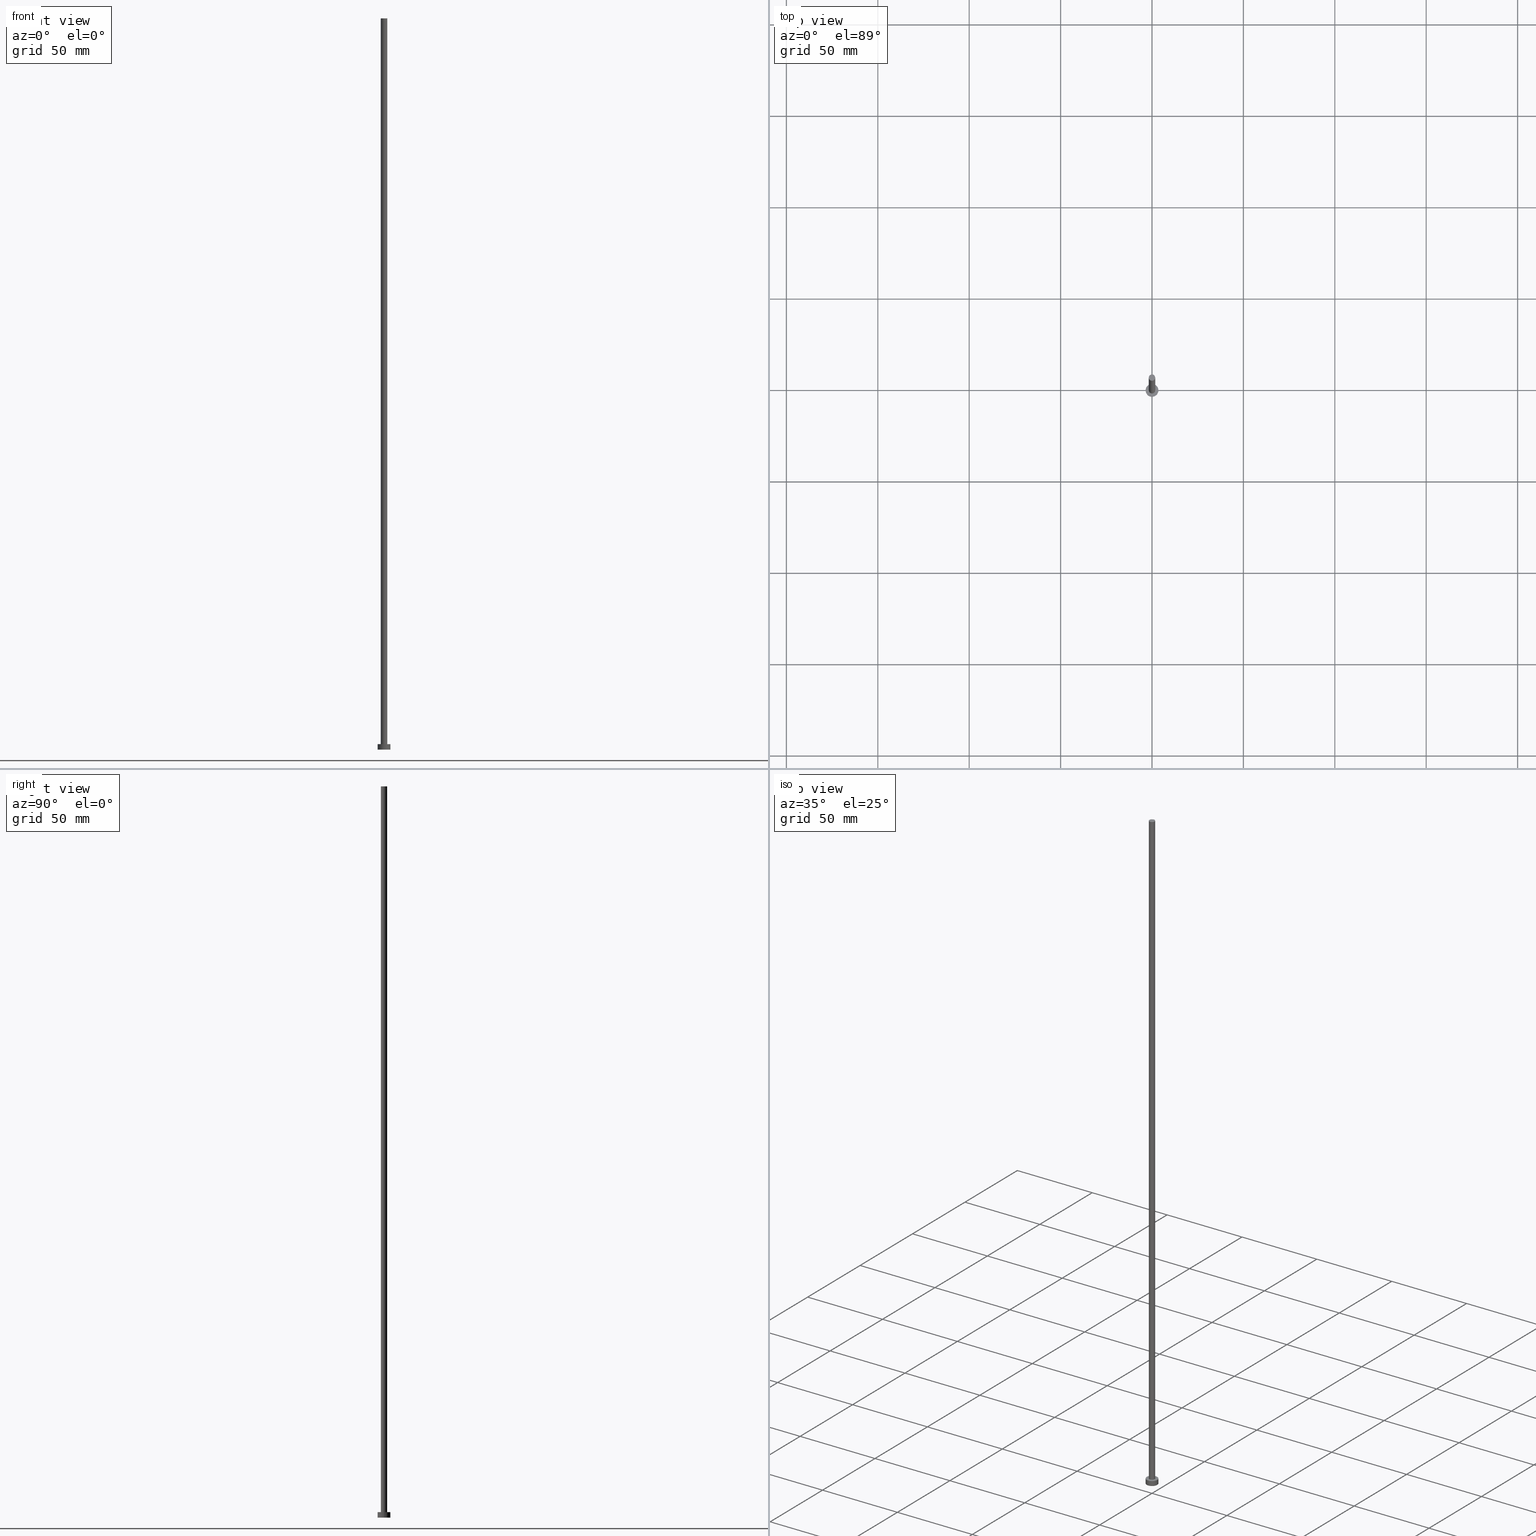
[diagram: canonical four-view strip — front | top / right | iso, engineering-drawing reading convention]
A machine part, canonical four-view strip (front | top / right | iso — engineering-drawing reading convention). The complete STEP part file that produces these views, byte-faithful:
ISO-10303-21;
HEADER;
FILE_DESCRIPTION (( 'STEP AP203' ),
    '1' );
FILE_NAME ('8919.STEP',
    '2023-02-13T13:58:28',
    ( '' ),
    ( '' ),
    'SwSTEP 2.0',
    'SolidWorks 2019',
    '' );
FILE_SCHEMA (( 'CONFIG_CONTROL_DESIGN' ));
ENDSEC;

DATA;
#1 = CARTESIAN_POINT ( 'NONE',  ( 0.000000000000000000, 0.000000000000000000, 3.000000000000000000 ) ) ;
#2 = CIRCLE ( 'NONE', #28, 1.750000000000000000 ) ;
#3 = PLANE ( 'NONE',  #158 ) ;
#4 = DIRECTION ( 'NONE',  ( 0.000000000000000000, 0.000000000000000000, 1.000000000000000000 ) ) ;
#5 = CC_DESIGN_APPROVAL ( #83, ( #186 ) ) ;
#6 = EDGE_CURVE ( 'NONE', #238, #90, #17, .T. ) ;
#7 = ORIENTED_EDGE ( 'NONE', *, *, #167, .F. ) ;
#8 = APPROVAL ( #233, 'NEUR�EN�' ) ;
#9 = DIRECTION ( 'NONE',  ( -1.000000000000000000, 0.000000000000000000, 0.000000000000000000 ) ) ;
#10 =( LENGTH_UNIT ( ) NAMED_UNIT ( * ) SI_UNIT ( .MILLI., .METRE. ) );
#11 = CARTESIAN_POINT ( 'NONE',  ( 1.750000000000000000, 2.143131898507868297E-16, 3.000000000000000000 ) ) ;
#12 = CIRCLE ( 'NONE', #198, 3.500000000000000444 ) ;
#13 = CYLINDRICAL_SURFACE ( 'NONE', #231, 1.750000000000000000 ) ;
#14 = MANIFOLD_SOLID_BREP ( 'P�idat vysunut�m3', #227 ) ;
#15 = PERSON_AND_ORGANIZATION ( #97, #230 ) ;
#16 = PERSON_AND_ORGANIZATION_ROLE ( 'creator' ) ;
#17 = CIRCLE ( 'NONE', #52, 1.750000000000000000 ) ;
#18 = PERSON_AND_ORGANIZATION ( #97, #230 ) ;
#19 = ORIENTED_EDGE ( 'NONE', *, *, #176, .T. ) ;
#20 = PERSON_AND_ORGANIZATION_ROLE ( 'design_supplier' ) ;
#21 = DATE_TIME_ROLE ( 'classification_date' ) ;
#22 = VERTEX_POINT ( 'NONE', #140 ) ;
#23 = CC_DESIGN_PERSON_AND_ORGANIZATION_ASSIGNMENT ( #43, #67, ( #82 ) ) ;
#24 = VERTEX_POINT ( 'NONE', #95 ) ;
#25 = ORIENTED_EDGE ( 'NONE', *, *, #148, .T. ) ;
#26 = FACE_OUTER_BOUND ( 'NONE', #175, .T. ) ;
#27 = DIRECTION ( 'NONE',  ( -0.000000000000000000, -0.000000000000000000, -1.000000000000000000 ) ) ;
#28 = AXIS2_PLACEMENT_3D ( 'NONE', #81, #243, #184 ) ;
#29 = APPROVAL ( #250, 'NEUR�EN�' ) ;
#30 = CARTESIAN_POINT ( 'NONE',  ( 0.000000000000000000, 0.000000000000000000, 400.0000000000000000 ) ) ;
#31 = CARTESIAN_POINT ( 'NONE',  ( -1.750000000000000000, 0.000000000000000000, 3.000000000000000000 ) ) ;
#32 = CARTESIAN_POINT ( 'NONE',  ( 0.000000000000000000, 0.000000000000000000, 3.000000000000000000 ) ) ;
#33 = ADVANCED_FACE ( 'NONE', ( #26 ), #44, .T. ) ;
#34 = VECTOR ( 'NONE', #107, 1000.000000000000000 ) ;
#35 = DIRECTION ( 'NONE',  ( -0.000000000000000000, -0.000000000000000000, -1.000000000000000000 ) ) ;
#36 = LINE ( 'NONE', #145, #34 ) ;
#37 = CARTESIAN_POINT ( 'NONE',  ( 0.000000000000000000, 0.000000000000000000, 3.000000000000000000 ) ) ;
#38 = CARTESIAN_POINT ( 'NONE',  ( 0.000000000000000000, 0.000000000000000000, 0.000000000000000000 ) ) ;
#39 = APPROVAL_ROLE ( '' ) ;
#40 = ORIENTED_EDGE ( 'NONE', *, *, #151, .F. ) ;
#41 = SECURITY_CLASSIFICATION_LEVEL ( 'unclassified' ) ;
#42 = APPROVAL_ROLE ( '' ) ;
#43 = PERSON_AND_ORGANIZATION ( #97, #230 ) ;
#44 = CYLINDRICAL_SURFACE ( 'NONE', #190, 3.500000000000000444 ) ;
#45 = CARTESIAN_POINT ( 'NONE',  ( 0.000000000000000000, 0.000000000000000000, 3.000000000000000000 ) ) ;
#46 = CC_DESIGN_APPROVAL ( #29, ( #82 ) ) ;
#47 = DIRECTION ( 'NONE',  ( 0.000000000000000000, 0.000000000000000000, 1.000000000000000000 ) ) ;
#48 = DIRECTION ( 'NONE',  ( 1.000000000000000000, 0.000000000000000000, -0.000000000000000000 ) ) ;
#49 = DIRECTION ( 'NONE',  ( 0.000000000000000000, 0.000000000000000000, 1.000000000000000000 ) ) ;
#50 = CARTESIAN_POINT ( 'NONE',  ( 3.500000000000000444, 4.286263797015737088E-16, 3.000000000000000000 ) ) ;
#51 = LOCAL_TIME ( 14, 58, 28.00000000000000000, #55 ) ;
#52 = AXIS2_PLACEMENT_3D ( 'NONE', #45, #160, #196 ) ;
#53 = VERTEX_POINT ( 'NONE', #255 ) ;
#54 = CALENDAR_DATE ( 2023, 13, 2 ) ;
#55 = COORDINATED_UNIVERSAL_TIME_OFFSET ( 1, 0, .AHEAD. ) ;
#56 = LOCAL_TIME ( 14, 58, 28.00000000000000000, #192 ) ;
#57 = FACE_OUTER_BOUND ( 'NONE', #71, .T. ) ;
#58 = LINE ( 'NONE', #218, #204 ) ;
#59 = ORIENTED_EDGE ( 'NONE', *, *, #185, .T. ) ;
#60 = DIRECTION ( 'NONE',  ( 0.000000000000000000, 0.000000000000000000, 1.000000000000000000 ) ) ;
#61 = DIRECTION ( 'NONE',  ( 0.000000000000000000, 0.000000000000000000, 1.000000000000000000 ) ) ;
#62 = DIRECTION ( 'NONE',  ( -0.000000000000000000, -0.000000000000000000, -1.000000000000000000 ) ) ;
#63 = CARTESIAN_POINT ( 'NONE',  ( 0.000000000000000000, 0.000000000000000000, 0.000000000000000000 ) ) ;
#64 = CC_DESIGN_DATE_AND_TIME_ASSIGNMENT ( #132, #21, ( #186 ) ) ;
#65 = UNCERTAINTY_MEASURE_WITH_UNIT (LENGTH_MEASURE( 1.000000000000000082E-05 ), #10, 'distance_accuracy_value', 'NONE');
#66 = EDGE_LOOP ( 'NONE', ( #7, #180 ) ) ;
#67 = PERSON_AND_ORGANIZATION_ROLE ( 'creator' ) ;
#68 = APPROVAL_DATE_TIME ( #212, #29 ) ;
#69 = ORIENTED_EDGE ( 'NONE', *, *, #185, .F. ) ;
#70 = APPROVAL_STATUS ( 'not_yet_approved' ) ;
#71 = EDGE_LOOP ( 'NONE', ( #253, #172, #170, #40 ) ) ;
#72 = APPLICATION_CONTEXT ( 'configuration controlled 3d designs of mechanical parts and assemblies' ) ;
#73 = PRODUCT_RELATED_PRODUCT_CATEGORY ( 'detail', '', ( #106 ) ) ;
#74 = ORIENTED_EDGE ( 'NONE', *, *, #206, .T. ) ;
#75 = AXIS2_PLACEMENT_3D ( 'NONE', #32, #205, #126 ) ;
#76 = DIRECTION ( 'NONE',  ( 1.000000000000000000, 0.000000000000000000, 0.000000000000000000 ) ) ;
#77 = DIRECTION ( 'NONE',  ( -1.000000000000000000, 0.000000000000000000, 0.000000000000000000 ) ) ;
#78 = FACE_OUTER_BOUND ( 'NONE', #236, .T. ) ;
#79 = CARTESIAN_POINT ( 'NONE',  ( 0.000000000000000000, 0.000000000000000000, 3.000000000000000000 ) ) ;
#80 = CARTESIAN_POINT ( 'NONE',  ( -1.750000000000000000, 0.000000000000000000, 400.0000000000000000 ) ) ;
#81 = CARTESIAN_POINT ( 'NONE',  ( 0.000000000000000000, 0.000000000000000000, 400.0000000000000000 ) ) ;
#82 = PRODUCT_DEFINITION ( 'NEZN�M�', '', #88, #246 ) ;
#83 = APPROVAL ( #70, 'NEUR�EN�' ) ;
#84 = CARTESIAN_POINT ( 'NONE',  ( 0.000000000000000000, 0.000000000000000000, 400.0000000000000000 ) ) ;
#85 = FACE_OUTER_BOUND ( 'NONE', #219, .T. ) ;
#86 = APPROVAL_DATE_TIME ( #155, #83 ) ;
#87 = CC_DESIGN_PERSON_AND_ORGANIZATION_ASSIGNMENT ( #150, #209, ( #186 ) ) ;
#88 = PRODUCT_DEFINITION_FORMATION_WITH_SPECIFIED_SOURCE ( 'LIBOVOLN�', '', #106, .NOT_KNOWN. ) ;
#89 = DATE_AND_TIME ( #249, #130 ) ;
#90 = VERTEX_POINT ( 'NONE', #31 ) ;
#91 = CYLINDRICAL_SURFACE ( 'NONE', #194, 1.750000000000000000 ) ;
#92 = DIRECTION ( 'NONE',  ( 1.000000000000000000, 0.000000000000000000, -0.000000000000000000 ) ) ;
#93 = AXIS2_PLACEMENT_3D ( 'NONE', #38, #102, #188 ) ;
#94 = ORIENTED_EDGE ( 'NONE', *, *, #151, .T. ) ;
#95 = CARTESIAN_POINT ( 'NONE',  ( -3.500000000000000444, 0.000000000000000000, 3.000000000000000000 ) ) ;
#96 = DIRECTION ( 'NONE',  ( 1.000000000000000000, 0.000000000000000000, -0.000000000000000000 ) ) ;
#97 = PERSON ( 'NEUR�EN�', 'NEUR�EN�', 'NEUR�EN�', ('NEUR�EN�'), ('NEUR�EN�'), ('NEUR�EN�') ) ;
#98 = APPROVAL_PERSON_ORGANIZATION ( #232, #8, #108 ) ;
#99 = ADVANCED_FACE ( 'NONE', ( #141 ), #3, .F. ) ;
#100 = LINE ( 'NONE', #50, #110 ) ;
#101 = AXIS2_PLACEMENT_3D ( 'NONE', #215, #4, #143 ) ;
#102 = DIRECTION ( 'NONE',  ( 0.000000000000000000, 0.000000000000000000, 1.000000000000000000 ) ) ;
#103 = ADVANCED_FACE ( 'NONE', ( #57 ), #91, .T. ) ;
#104 = CARTESIAN_POINT ( 'NONE',  ( 0.000000000000000000, 0.000000000000000000, 3.000000000000000000 ) ) ;
#105 = CYLINDRICAL_SURFACE ( 'NONE', #181, 3.500000000000000444 ) ;
#106 = PRODUCT ( '8919', '8919', '', ( #165 ) ) ;
#107 = DIRECTION ( 'NONE',  ( -0.000000000000000000, -0.000000000000000000, -1.000000000000000000 ) ) ;
#108 = APPROVAL_ROLE ( '' ) ;
#109 = ADVANCED_FACE ( 'NONE', ( #217, #156 ), #120, .T. ) ;
#110 = VECTOR ( 'NONE', #129, 1000.000000000000000 ) ;
#111 = COORDINATED_UNIVERSAL_TIME_OFFSET ( 1, 0, .AHEAD. ) ;
#112 = VERTEX_POINT ( 'NONE', #200 ) ;
#113 = CALENDAR_DATE ( 2023, 13, 2 ) ;
#114 = ORIENTED_EDGE ( 'NONE', *, *, #148, .F. ) ;
#115 = DATE_AND_TIME ( #254, #137 ) ;
#116 = AXIS2_PLACEMENT_3D ( 'NONE', #37, #228, #147 ) ;
#117 = CC_DESIGN_APPROVAL ( #8, ( #88 ) ) ;
#118 = AXIS2_PLACEMENT_3D ( 'NONE', #177, #60, #96 ) ;
#119 = ORIENTED_EDGE ( 'NONE', *, *, #242, .F. ) ;
#120 = PLANE ( 'NONE',  #213 ) ;
#121 = ORIENTED_EDGE ( 'NONE', *, *, #6, .F. ) ;
#122 = CARTESIAN_POINT ( 'NONE',  ( 0.000000000000000000, 0.000000000000000000, 3.000000000000000000 ) ) ;
#123 = ORIENTED_EDGE ( 'NONE', *, *, #157, .F. ) ;
#124 = EDGE_CURVE ( 'NONE', #161, #22, #182, .T. ) ;
#125 = DIRECTION ( 'NONE',  ( 1.000000000000000000, 0.000000000000000000, 0.000000000000000000 ) ) ;
#126 = DIRECTION ( 'NONE',  ( 1.000000000000000000, 0.000000000000000000, 0.000000000000000000 ) ) ;
#127 = AXIS2_PLACEMENT_3D ( 'NONE', #63, #183, #163 ) ;
#128 = APPLICATION_PROTOCOL_DEFINITION ( 'international standard', 'config_control_design', 1994, #136 ) ;
#129 = DIRECTION ( 'NONE',  ( -0.000000000000000000, -0.000000000000000000, -1.000000000000000000 ) ) ;
#130 = LOCAL_TIME ( 14, 58, 28.00000000000000000, #153 ) ;
#131 = ADVANCED_FACE ( 'NONE', ( #78 ), #239, .T. ) ;
#132 = DATE_AND_TIME ( #54, #56 ) ;
#133 = APPROVAL_PERSON_ORGANIZATION ( #251, #29, #42 ) ;
#134 = CC_DESIGN_PERSON_AND_ORGANIZATION_ASSIGNMENT ( #15, #191, ( #106 ) ) ;
#135 = PERSON_AND_ORGANIZATION ( #97, #230 ) ;
#136 = APPLICATION_CONTEXT ( 'configuration controlled 3d designs of mechanical parts and assemblies' ) ;
#137 = LOCAL_TIME ( 14, 58, 28.00000000000000000, #252 ) ;
#138 = ORIENTED_EDGE ( 'NONE', *, *, #139, .T. ) ;
#139 = EDGE_CURVE ( 'NONE', #24, #193, #223, .T. ) ;
#140 = CARTESIAN_POINT ( 'NONE',  ( 1.750000000000000000, 2.143131898507868297E-16, 400.0000000000000000 ) ) ;
#141 = FACE_OUTER_BOUND ( 'NONE', #66, .T. ) ;
#142 = ORIENTED_EDGE ( 'NONE', *, *, #124, .F. ) ;
#143 = DIRECTION ( 'NONE',  ( 1.000000000000000000, 0.000000000000000000, 0.000000000000000000 ) ) ;
#144 =( NAMED_UNIT ( * ) PLANE_ANGLE_UNIT ( ) SI_UNIT ( $, .RADIAN. ) );
#145 = CARTESIAN_POINT ( 'NONE',  ( -1.750000000000000000, 0.000000000000000000, 400.0000000000000000 ) ) ;
#146 = VECTOR ( 'NONE', #62, 1000.000000000000000 ) ;
#147 = DIRECTION ( 'NONE',  ( 1.000000000000000000, 0.000000000000000000, 0.000000000000000000 ) ) ;
#148 = EDGE_CURVE ( 'NONE', #24, #53, #58, .T. ) ;
#149 = ORIENTED_EDGE ( 'NONE', *, *, #124, .T. ) ;
#150 = PERSON_AND_ORGANIZATION ( #97, #230 ) ;
#151 = EDGE_CURVE ( 'NONE', #161, #90, #36, .T. ) ;
#152 = LOCAL_TIME ( 14, 58, 28.00000000000000000, #111 ) ;
#153 = COORDINATED_UNIVERSAL_TIME_OFFSET ( 1, 0, .AHEAD. ) ;
#154 = CC_DESIGN_SECURITY_CLASSIFICATION ( #186, ( #88 ) ) ;
#155 = DATE_AND_TIME ( #211, #51 ) ;
#156 = FACE_OUTER_BOUND ( 'NONE', #179, .T. ) ;
#157 = EDGE_CURVE ( 'NONE', #193, #24, #168, .T. ) ;
#158 = AXIS2_PLACEMENT_3D ( 'NONE', #159, #61, #48 ) ;
#159 = CARTESIAN_POINT ( 'NONE',  ( 0.000000000000000000, 0.000000000000000000, 0.000000000000000000 ) ) ;
#160 = DIRECTION ( 'NONE',  ( 0.000000000000000000, 0.000000000000000000, 1.000000000000000000 ) ) ;
#161 = VERTEX_POINT ( 'NONE', #80 ) ;
#162 = EDGE_LOOP ( 'NONE', ( #69, #121 ) ) ;
#163 = DIRECTION ( 'NONE',  ( 1.000000000000000000, 0.000000000000000000, 0.000000000000000000 ) ) ;
#164 = EDGE_CURVE ( 'NONE', #193, #112, #100, .T. ) ;
#165 = MECHANICAL_CONTEXT ( 'NONE', #136, 'mechanical' ) ;
#166 = DIRECTION ( 'NONE',  ( -0.000000000000000000, -0.000000000000000000, -1.000000000000000000 ) ) ;
#167 = EDGE_CURVE ( 'NONE', #53, #112, #237, .T. ) ;
#168 = CIRCLE ( 'NONE', #75, 3.500000000000000444 ) ;
#169 = PERSON_AND_ORGANIZATION ( #97, #230 ) ;
#170 = ORIENTED_EDGE ( 'NONE', *, *, #6, .T. ) ;
#171 = APPLICATION_PROTOCOL_DEFINITION ( 'international standard', 'config_control_design', 1994, #72 ) ;
#172 = ORIENTED_EDGE ( 'NONE', *, *, #242, .T. ) ;
#173 = DATE_TIME_ROLE ( 'creation_date' ) ;
#174 = ORIENTED_EDGE ( 'NONE', *, *, #164, .F. ) ;
#175 = EDGE_LOOP ( 'NONE', ( #123, #216, #74, #114 ) ) ;
#176 = EDGE_CURVE ( 'NONE', #22, #161, #2, .T. ) ;
#177 = CARTESIAN_POINT ( 'NONE',  ( 0.000000000000000000, 0.000000000000000000, 400.0000000000000000 ) ) ;
#178 = EDGE_LOOP ( 'NONE', ( #119, #142, #94, #59 ) ) ;
#179 = EDGE_LOOP ( 'NONE', ( #138, #234 ) ) ;
#180 = ORIENTED_EDGE ( 'NONE', *, *, #206, .F. ) ;
#181 = AXIS2_PLACEMENT_3D ( 'NONE', #104, #35, #9 ) ;
#182 = CIRCLE ( 'NONE', #101, 1.750000000000000000 ) ;
#183 = DIRECTION ( 'NONE',  ( 0.000000000000000000, 0.000000000000000000, 1.000000000000000000 ) ) ;
#184 = DIRECTION ( 'NONE',  ( 1.000000000000000000, 0.000000000000000000, 0.000000000000000000 ) ) ;
#185 = EDGE_CURVE ( 'NONE', #90, #238, #222, .T. ) ;
#186 = SECURITY_CLASSIFICATION ( '', '', #41 ) ;
#187 = DIRECTION ( 'NONE',  ( 0.000000000000000000, 0.000000000000000000, 1.000000000000000000 ) ) ;
#188 = DIRECTION ( 'NONE',  ( 1.000000000000000000, 0.000000000000000000, 0.000000000000000000 ) ) ;
#189 = ADVANCED_FACE ( 'NONE', ( #85 ), #105, .T. ) ;
#190 = AXIS2_PLACEMENT_3D ( 'NONE', #79, #199, #201 ) ;
#191 = PERSON_AND_ORGANIZATION_ROLE ( 'design_owner' ) ;
#192 = COORDINATED_UNIVERSAL_TIME_OFFSET ( 1, 0, .AHEAD. ) ;
#193 = VERTEX_POINT ( 'NONE', #241 ) ;
#194 = AXIS2_PLACEMENT_3D ( 'NONE', #30, #197, #77 ) ;
#195 = PRODUCT_DEFINITION_SHAPE ( 'NONE', 'NONE',  #82 ) ;
#196 = DIRECTION ( 'NONE',  ( 1.000000000000000000, 0.000000000000000000, 0.000000000000000000 ) ) ;
#197 = DIRECTION ( 'NONE',  ( -0.000000000000000000, -0.000000000000000000, -1.000000000000000000 ) ) ;
#198 = AXIS2_PLACEMENT_3D ( 'NONE', #247, #187, #125 ) ;
#199 = DIRECTION ( 'NONE',  ( -0.000000000000000000, -0.000000000000000000, -1.000000000000000000 ) ) ;
#200 = CARTESIAN_POINT ( 'NONE',  ( 3.500000000000000444, 4.286263797015737088E-16, 0.000000000000000000 ) ) ;
#201 = DIRECTION ( 'NONE',  ( -1.000000000000000000, 0.000000000000000000, 0.000000000000000000 ) ) ;
#202 = CARTESIAN_POINT ( 'NONE',  ( 1.750000000000000000, 2.143131898507868297E-16, 400.0000000000000000 ) ) ;
#203 = APPROVAL_PERSON_ORGANIZATION ( #18, #83, #39 ) ;
#204 = VECTOR ( 'NONE', #27, 1000.000000000000000 ) ;
#205 = DIRECTION ( 'NONE',  ( 0.000000000000000000, 0.000000000000000000, 1.000000000000000000 ) ) ;
#206 = EDGE_CURVE ( 'NONE', #112, #53, #12, .T. ) ;
#207 = ADVANCED_BREP_SHAPE_REPRESENTATION ( '8919', ( #14, #93 ), #220 ) ;
#208 = APPROVAL_DATE_TIME ( #115, #8 ) ;
#209 = PERSON_AND_ORGANIZATION_ROLE ( 'classification_officer' ) ;
#210 = ORIENTED_EDGE ( 'NONE', *, *, #167, .T. ) ;
#211 = CALENDAR_DATE ( 2023, 13, 2 ) ;
#212 = DATE_AND_TIME ( #113, #152 ) ;
#213 = AXIS2_PLACEMENT_3D ( 'NONE', #122, #47, #92 ) ;
#214 = CC_DESIGN_PERSON_AND_ORGANIZATION_ASSIGNMENT ( #169, #16, ( #88 ) ) ;
#215 = CARTESIAN_POINT ( 'NONE',  ( 0.000000000000000000, 0.000000000000000000, 400.0000000000000000 ) ) ;
#216 = ORIENTED_EDGE ( 'NONE', *, *, #164, .T. ) ;
#217 = FACE_BOUND ( 'NONE', #162, .T. ) ;
#218 = CARTESIAN_POINT ( 'NONE',  ( -3.500000000000000444, 0.000000000000000000, 3.000000000000000000 ) ) ;
#219 = EDGE_LOOP ( 'NONE', ( #174, #240, #25, #210 ) ) ;
#220 =( GEOMETRIC_REPRESENTATION_CONTEXT ( 3 ) GLOBAL_UNCERTAINTY_ASSIGNED_CONTEXT ( ( #65 ) ) GLOBAL_UNIT_ASSIGNED_CONTEXT ( ( #10, #144, #225 ) ) REPRESENTATION_CONTEXT ( 'NONE', 'WORKASPACE' ) );
#221 = DIRECTION ( 'NONE',  ( -1.000000000000000000, 0.000000000000000000, 0.000000000000000000 ) ) ;
#222 = CIRCLE ( 'NONE', #116, 1.750000000000000000 ) ;
#223 = CIRCLE ( 'NONE', #248, 3.500000000000000444 ) ;
#224 = FACE_OUTER_BOUND ( 'NONE', #178, .T. ) ;
#225 =( NAMED_UNIT ( * ) SI_UNIT ( $, .STERADIAN. ) SOLID_ANGLE_UNIT ( ) );
#226 = CC_DESIGN_DATE_AND_TIME_ASSIGNMENT ( #89, #173, ( #82 ) ) ;
#227 = CLOSED_SHELL ( 'NONE', ( #103, #33, #189, #109, #99, #235, #131 ) ) ;
#228 = DIRECTION ( 'NONE',  ( 0.000000000000000000, 0.000000000000000000, 1.000000000000000000 ) ) ;
#229 = SHAPE_DEFINITION_REPRESENTATION ( #195, #207 ) ;
#230 = ORGANIZATION ( 'NEUR�EN�', 'NEUR�EN�', '' ) ;
#231 = AXIS2_PLACEMENT_3D ( 'NONE', #84, #166, #221 ) ;
#232 = PERSON_AND_ORGANIZATION ( #97, #230 ) ;
#233 = APPROVAL_STATUS ( 'not_yet_approved' ) ;
#234 = ORIENTED_EDGE ( 'NONE', *, *, #157, .T. ) ;
#235 = ADVANCED_FACE ( 'NONE', ( #224 ), #13, .T. ) ;
#236 = EDGE_LOOP ( 'NONE', ( #149, #19 ) ) ;
#237 = CIRCLE ( 'NONE', #127, 3.500000000000000444 ) ;
#238 = VERTEX_POINT ( 'NONE', #11 ) ;
#239 = PLANE ( 'NONE',  #118 ) ;
#240 = ORIENTED_EDGE ( 'NONE', *, *, #139, .F. ) ;
#241 = CARTESIAN_POINT ( 'NONE',  ( 3.500000000000000444, 4.286263797015737088E-16, 3.000000000000000000 ) ) ;
#242 = EDGE_CURVE ( 'NONE', #22, #238, #245, .T. ) ;
#243 = DIRECTION ( 'NONE',  ( 0.000000000000000000, 0.000000000000000000, 1.000000000000000000 ) ) ;
#244 = CC_DESIGN_PERSON_AND_ORGANIZATION_ASSIGNMENT ( #135, #20, ( #88 ) ) ;
#245 = LINE ( 'NONE', #202, #146 ) ;
#246 = DESIGN_CONTEXT ( 'detailed design', #72, 'design' ) ;
#247 = CARTESIAN_POINT ( 'NONE',  ( 0.000000000000000000, 0.000000000000000000, 0.000000000000000000 ) ) ;
#248 = AXIS2_PLACEMENT_3D ( 'NONE', #1, #49, #76 ) ;
#249 = CALENDAR_DATE ( 2023, 13, 2 ) ;
#250 = APPROVAL_STATUS ( 'not_yet_approved' ) ;
#251 = PERSON_AND_ORGANIZATION ( #97, #230 ) ;
#252 = COORDINATED_UNIVERSAL_TIME_OFFSET ( 1, 0, .AHEAD. ) ;
#253 = ORIENTED_EDGE ( 'NONE', *, *, #176, .F. ) ;
#254 = CALENDAR_DATE ( 2023, 13, 2 ) ;
#255 = CARTESIAN_POINT ( 'NONE',  ( -3.500000000000000444, 0.000000000000000000, 0.000000000000000000 ) ) ;
ENDSEC;
END-ISO-10303-21;
